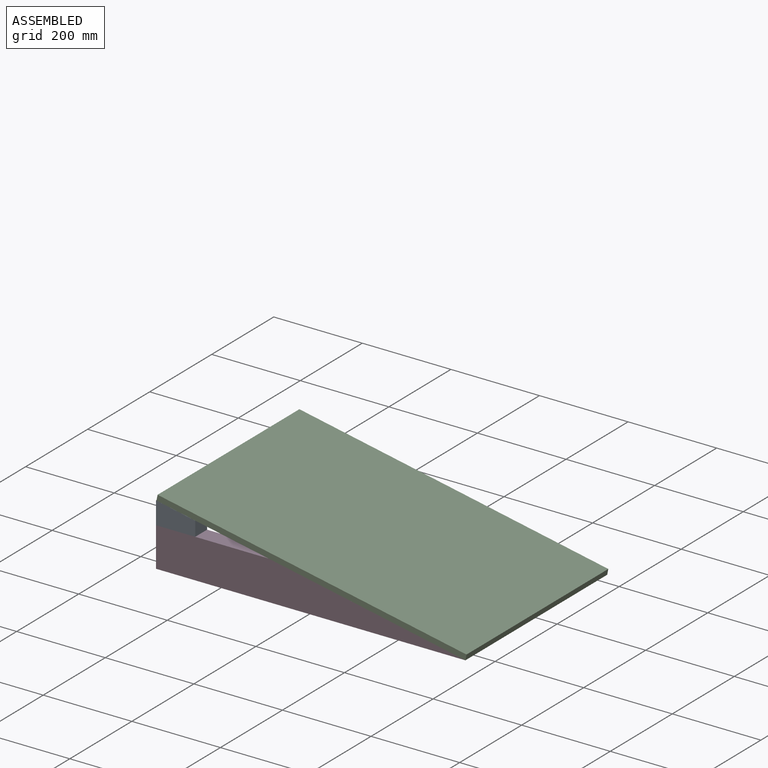
[diagram: assembled view]
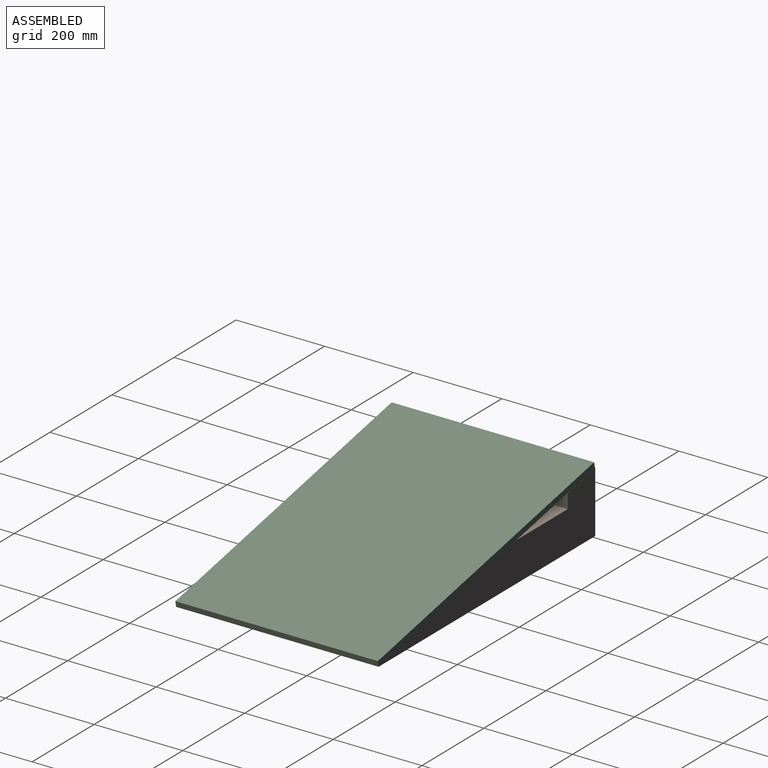
[diagram: assembled view, second angle]
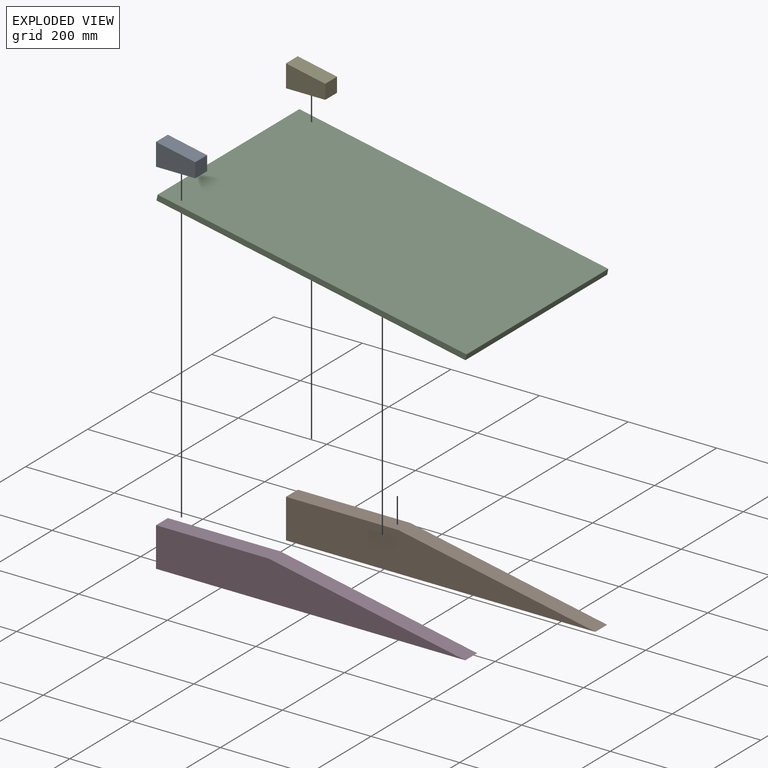
[diagram: exploded view]
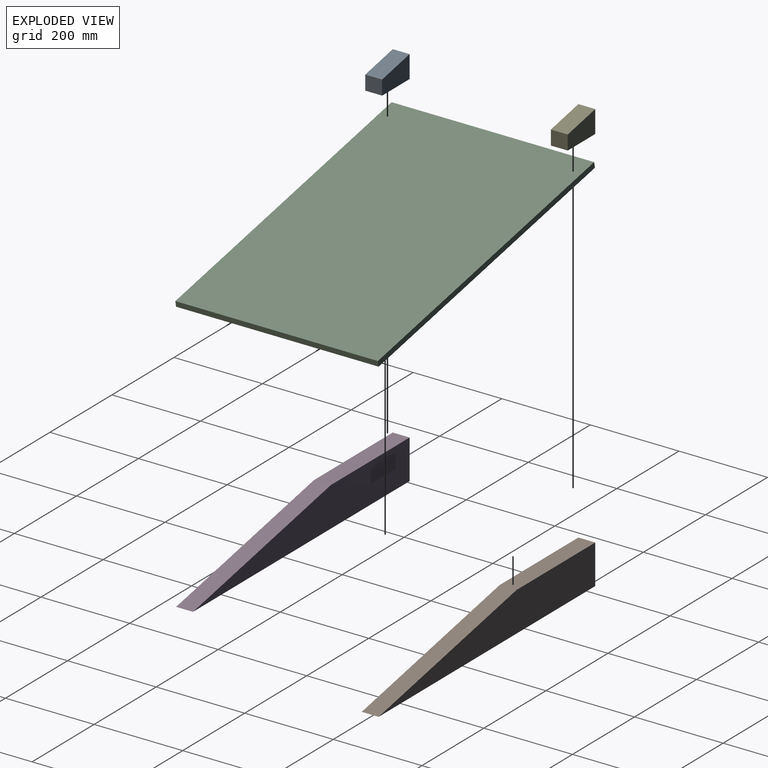
[diagram: exploded view, second angle]
ASSEMBLY  parts=5 mates=4
PART A: 6 faces, bbox 88.6x38.1x50.8 mm
  f0: plane 88.64x38.1mm, normal (0.2,0,0.98), area 3446.4mm2, adj f1,f3,f4,f5
  f1: plane 50.8x38.1mm, normal (-1,0,0), area 1935.5mm2, adj f0,f2,f4,f5
  f2: plane 88.64x38.1mm, normal (0,0,-1), area 3377.2mm2, adj f1,f3,f4,f5
  f3: plane 38.1x32.77mm, normal (1,0,0), area 1248.4mm2, adj f0,f2,f4,f5
  f4: plane 88.64x50.8mm, normal (0,-1,0), area 3703.6mm2, adj f0,f1,f2,f3
  f5: plane 88.64x50.8mm, normal (0,1,0), area 3703.6mm2, adj f0,f1,f2,f3
PART B: 6 faces, bbox 698.5x38.1x88.9 mm
  f0: plane 88.9x38.1mm, normal (-1,0,0), area 3387.1mm2, adj f1,f3,f4,f5
  f1: plane 698.5x38.1mm, normal (0,0,-1), area 26612.9mm2, adj f0,f2,f4,f5
  f2: plane 444.5x88.9mm, normal (0.2,0,0.98), area 17270.8mm2, adj f1,f3,f4,f5
  f3: plane 254x38.1mm, normal (0,0,1), area 9677.4mm2, adj f0,f2,f4,f5
  f4: plane 698.5x88.9mm, normal (0,-1,0), area 42338.6mm2, adj f0,f1,f2,f3
  f5: plane 698.5x88.9mm, normal (0,1,0), area 42338.6mm2, adj f0,f1,f2,f3
PART C: 6 faces, bbox 711.2x457.2x12.7 mm
  f0: plane 711.2x12.7mm, normal (0,-1,0), area 9032.2mm2, adj f1,f3,f4,f5
  f1: plane 457.2x12.7mm, normal (1,0,0), area 5806.4mm2, adj f0,f2,f4,f5
  f2: plane 711.2x12.7mm, normal (0,1,0), area 9032.2mm2, adj f1,f3,f4,f5
  f3: plane 457.2x12.7mm, normal (-1,0,0), area 5806.4mm2, adj f0,f2,f4,f5
  f4: plane 711.2x457.2mm, normal (0,0,1), area 325160.6mm2, adj f0,f1,f2,f3
  f5: plane 711.2x457.2mm, normal (0,0,-1), area 325160.6mm2, adj f0,f1,f2,f3
PART D: same geometry as B
PART E: same geometry as A
PLACE A t=(-766.94,-191.22,134.25)mm
PLACE B t=(-106.43,227.88,34.78)mm
PLACE C rot(axis=(0,1,0),11.3deg) t=(-455.13,-0.72,104.52)mm
PLACE D t=(-106.43,-191.22,34.78)mm
PLACE E t=(-766.94,227.88,134.25)mm
MATE fastened A.f2 <-> D.f3  axis (0,0,-1) through (-804.93,-229.32,123.68)mm
MATE fastened B.f2 <-> C.f5  axis (0.2,0,0.98) through (-106.43,227.88,34.78)mm
MATE fastened C.f5 <-> D.f2  axis (-0.2,0,-0.98) through (-106.43,-229.32,34.78)mm
MATE fastened E.f2 <-> B.f3  axis (0,0,-1) through (-804.93,227.88,123.68)mm
